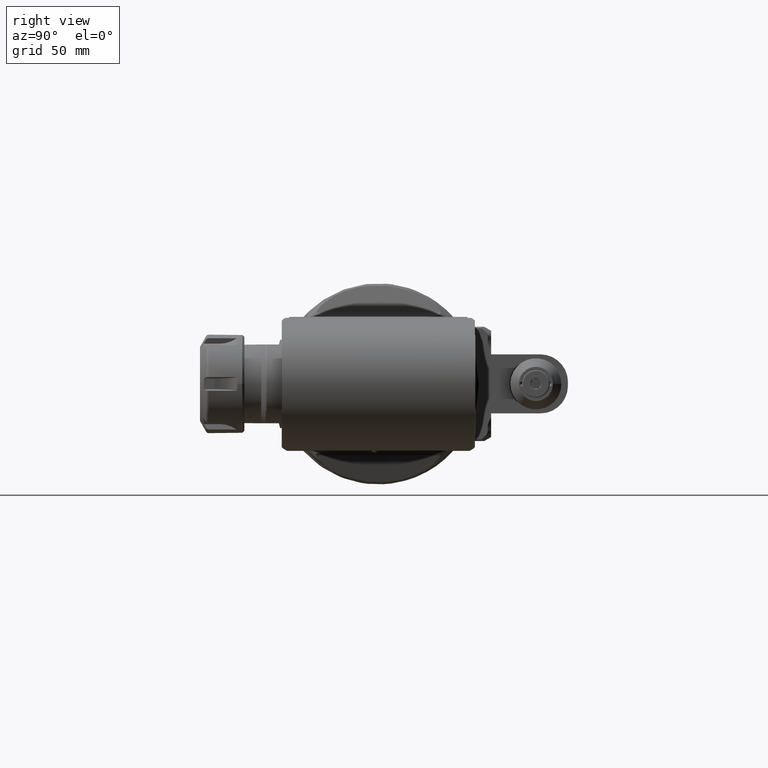
[diagram: clean part render]
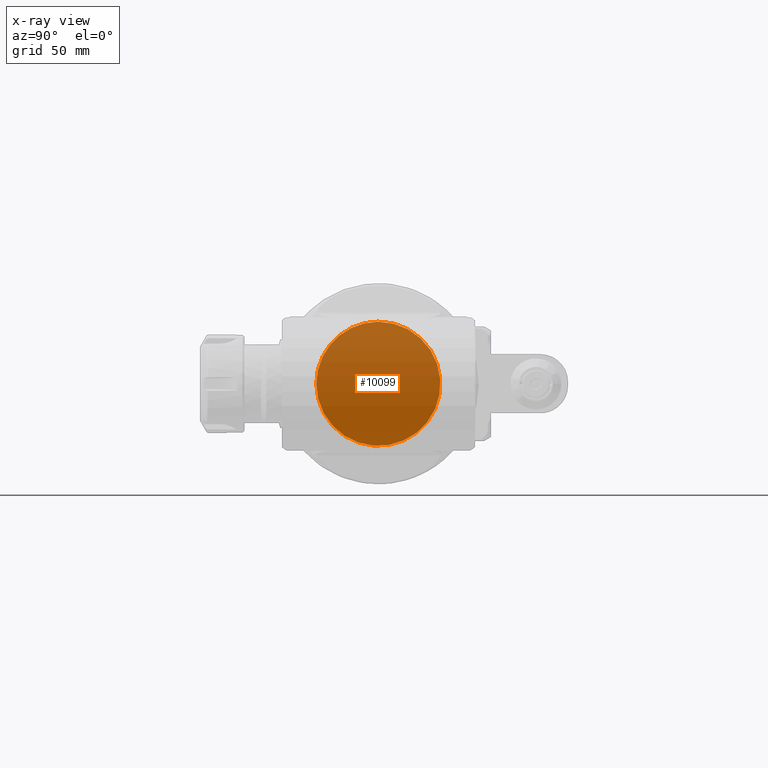
[diagram: x-ray — body ghosted, one internal face saturated and labeled with its STEP entity id]
A machine part, right view, then the same camera in x-ray: the body is ghosted and one INTERNAL B-rep face — a face not visible from any outside direction — is saturated and labeled: STEP entity #10099.
In plain terms, the highlighted planar face has unit normal (-1, -0, 0).
Its self-contained STEP definition (entity closure, byte-faithful):
#2374=FACE_OUTER_BOUND('',#2910,.T.);
#2910=EDGE_LOOP('',(#7074,#7075));
#3494=CIRCLE('',#10741,31.5);
#3495=CIRCLE('',#10742,31.5);
#4056=VERTEX_POINT('',#19470);
#4057=VERTEX_POINT('',#19472);
#5272=EDGE_CURVE('',#4057,#4056,#3494,.T.);
#5273=EDGE_CURVE('',#4056,#4057,#3495,.T.);
#7074=ORIENTED_EDGE('',*,*,#5272,.T.);
#7075=ORIENTED_EDGE('',*,*,#5273,.T.);
#9787=PLANE('',#10743);
#10099=ADVANCED_FACE('',(#2374),#9787,.T.);
#10741=AXIS2_PLACEMENT_3D('',#19473,#11905,#11906);
#10742=AXIS2_PLACEMENT_3D('',#19474,#11907,#11908);
#10743=AXIS2_PLACEMENT_3D('',#19475,#11909,#11910);
#11905=DIRECTION('center_axis',(-1.,0.,0.));
#11906=DIRECTION('ref_axis',(0.,-1.,0.));
#11907=DIRECTION('center_axis',(-1.,0.,0.));
#11908=DIRECTION('ref_axis',(0.,-1.,0.));
#11909=DIRECTION('center_axis',(-1.,0.,0.));
#11910=DIRECTION('ref_axis',(0.,0.,1.));
#19470=CARTESIAN_POINT('',(148.063097000004,-3.85763741731334E-15,31.4999999999933));
#19472=CARTESIAN_POINT('',(148.063097,-31.5,0.));
#19473=CARTESIAN_POINT('Origin',(148.063097,0.,0.));
#19474=CARTESIAN_POINT('Origin',(148.063097,0.,0.));
#19475=CARTESIAN_POINT('Origin',(148.063097,0.,26.65));